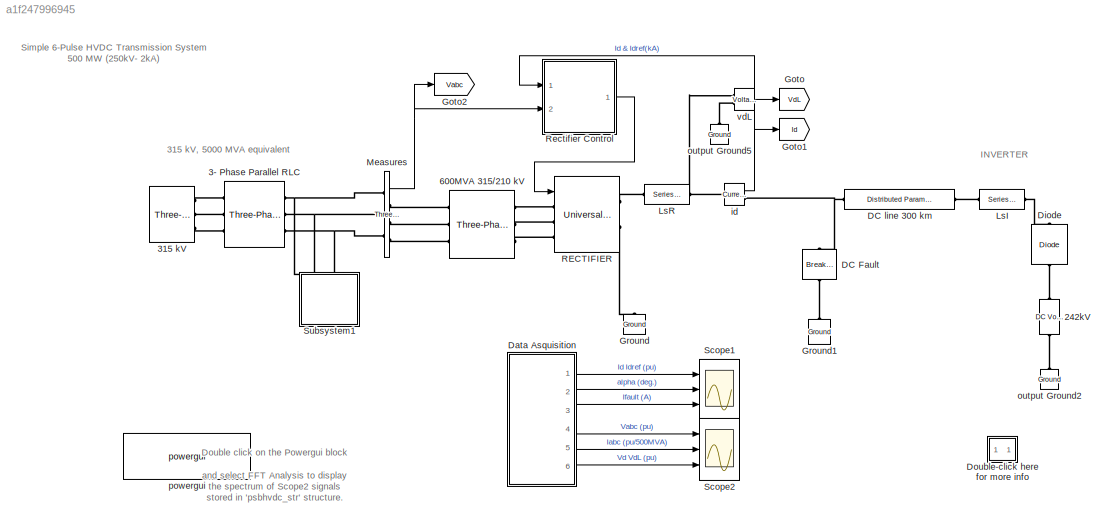
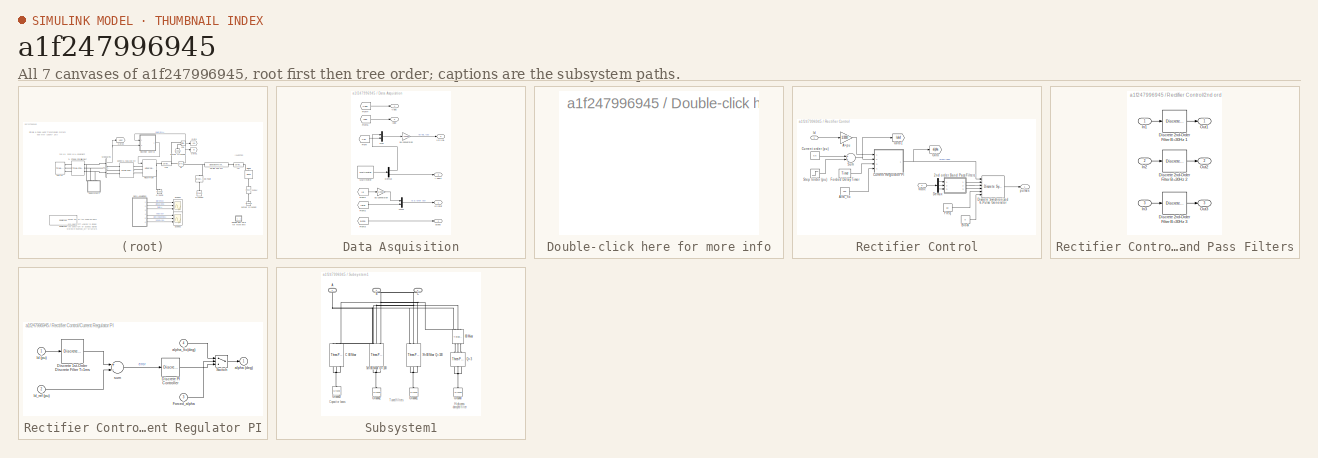
[diagram: thumbnail index - all 7 canvases of the model, root first then tree order]
MODEL slx_a1f247996945
KIND model
BLOCK [Reference] 242kV  REF=powerlib/Electrical
Sources/DC Voltage Source
  Amplitude = 242000
  AttributesFormatString = \n
  Description = source block
  Measurements = None
  Ports = [0, 0, 0, 0, 0, 1, 1]
  SourceBlock = powerlib/Electrical\nSources/DC Voltage Source
  SourceType = DC Voltage Source
BLOCK [Reference] 3- Phase Parallel RLC  REF=powerlib/Elements/Three-Phase
Parallel RLC Branch
  AttributesFormatString = \n
  BranchType = RL
  Capacitance = 1.0
  Inductance = 23.264e-3
  LConnTagsString = A|B|C
  Measurements = None
  Ports = [0, 0, 0, 0, 0, 3, 3]
  RConnTagsString = A|B|C
  Resistance = 12.41
  SourceBlock = powerlib/Elements/Three-Phase\nParallel RLC Branch
  SourceType = Three-Phase Parallel RLC Branch
BLOCK [Reference] 315 kV  REF=powerlib/Electrical
Sources/Three-Phase Source
  BaseVoltage = 0
  BusType = swing
  Frequency = 60
  Inductance = 46.671e-3
  InternalConnection = Yg
  PhaseAngle = 0
  Ports = [0, 0, 0, 0, 0, 0, 3]
  Pref = 0
  Qmax = inf
  Qmin = -inf
  Qref = 0
  Resistance = 0
  ShortCircuitLevel = 0
  SourceBlock = powerlib/Electrical\nSources/Three-Phase Source
  SourceType = Three-Phase Source
  SpecifyImpedance = off
  Voltage = 315e3
  XRratio = 0
BLOCK [Reference] 600MVA 315//210 kV  REF=powerlib/Elements/Three-Phase
Transformer
(Two Windings)
  AttributesFormatString = \n
  BreakLoop = off
  DataFile = 'hysteresis'
  DataType = off
  Hysteresis = off
  InitialFluxes = [ 0.8 , -0.8 , 0.7 ]
  Lm = 500
  Measurements = None
  MoreParameters = off
  NominalPower = [ 600e6 60 ]
  Ports = [0, 0, 0, 0, 0, 3, 3]
  Rm = 500
  Saturation = [ 0,0  ;  0.005,1.2  ;  1.0,1.4 ]
  SetInitialFlux = off
  SetSaturation = off
  SourceBlock = powerlib/Elements/Three-Phase\nTransformer\n(Two Windings)
  SourceType = Three-Phase Transformer (Two Windings)
  TransfoNumber = 0
  UNITS = pu
  Winding1 = [ 315e3*0.97 0.0015  0.0 ]
  Winding1Connection = Yg
  Winding2 = [ 210e3 0.0015 0.12]
  Winding2Connection = Delta (D1)
BLOCK [Reference] DC Fault  REF=powerlib/Elements/Breaker
  AttributesFormatString = \n
  BreakerResistance = 0.1
  External = off
  InitialState = 0
  Measurements = Branch current
  MoreParameters = off
  NoBreakLoop = off
  Ports = [0, 0, 0, 0, 0, 1, 1]
  SnubberCapacitance = 0
  SnubberResistance = inf
  SourceBlock = powerlib/Elements/Breaker
  SourceType = Breaker
  SwitchingTimes = [ 0.5 0.51 ]
BLOCK [Reference] DC line 300 km  REF=powerlib/Elements/Distributed Parameters Line
  AttributesFormatString = \n
  Capacitance = 14.4e-9
  Frequency = 60
  Inductance = 0.792e-3
  Length = 300
  Measurements = None
  Phases = 1
  Ports = [0, 0, 0, 0, 0, 1, 1]
  Resistance = 0.015
  SourceBlock = powerlib/Elements/Distributed Parameters Line
  SourceType = Distributed Parameters Line
  x1 = [-0.00104166666666667 96799.9999940249;-0.000998263888888889 96799.9999940249;-0.000954861111111111 96799.9999940249;-0.000911458333333333 96799.9999940249;-0.000868055555555556 96799.9999940249;-0.000824652777777778 96799.9999940249;-0.00078125 96799.9999940249;-0.000737847222222222 96799.9999940249;-0.000694444444444444 96799.9999940249;-0.000651041666666667 96799.9999940249;-0.00060763888888888...<+517ch>
  x2 = [-0.00104166666666667 96799.9999940249;-0.000998263888888889 96799.9999940249;-0.000954861111111111 96799.9999940249;-0.000911458333333333 96799.9999940249;-0.000868055555555556 96799.9999940249;-0.000824652777777778 96799.9999940249;-0.00078125 96799.9999940249;-0.000737847222222222 96799.9999940249;-0.000694444444444444 96799.9999940249;-0.000651041666666667 96799.9999940249;-0.00060763888888888...<+517ch>
  x3 = [-0.00104166666666667 406.863760317022;-0.000998263888888889 406.863760317022;-0.000954861111111111 406.863760317022;-0.000911458333333333 406.863760317022;-0.000868055555555556 406.863760317022;-0.000824652777777778 406.863760317022;-0.00078125 406.863760317022;-0.000737847222222222 406.863760317022;-0.000694444444444444 406.863760317022;-0.000651041666666667 406.863760317022;-0.00060763888888888...<+517ch>
  x4 = [-0.00104166666666667 406.863760317022;-0.000998263888888889 406.863760317022;-0.000954861111111111 406.863760317022;-0.000911458333333333 406.863760317022;-0.000868055555555556 406.863760317022;-0.000824652777777778 406.863760317022;-0.00078125 406.863760317022;-0.000737847222222222 406.863760317022;-0.000694444444444444 406.863760317022;-0.000651041666666667 406.863760317022;-0.00060763888888888...<+517ch>
  x5 = 0.00101312980412186
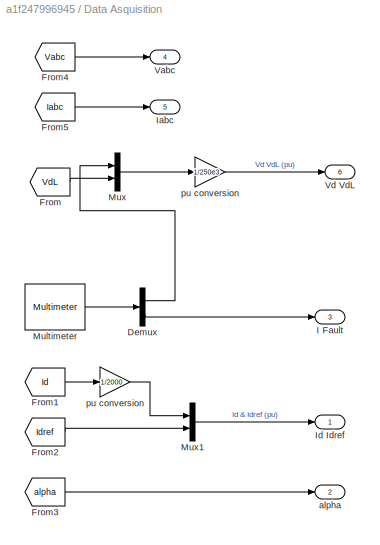
BLOCK [SubSystem] Data Asquisition
  FunctionWithSeparateData = off
  MaskHideContents = off
  MinAlgLoopOccurrences = off
  Opaque = off
  Ports = [0, 6]
  PropExecContextOutsideSubsystem = off
  RTWSystemCode = Auto
  RequestExecContextInheritance = off
BLOCK [Demux] Data Asquisition/Demux
  Outputs = 2
  Ports = [1, 2]
BLOCK [From] Data Asquisition/From
  CloseFcn = tagdialog Close
  GotoTag = VdL
  TagVisibility = global
BLOCK [From] Data Asquisition/From1
  CloseFcn = tagdialog Close
  GotoTag = Id
  TagVisibility = global
BLOCK [From] Data Asquisition/From2
  CloseFcn = tagdialog Close
  GotoTag = Idref
  TagVisibility = global
BLOCK [From] Data Asquisition/From3
  CloseFcn = tagdialog Close
  GotoTag = alpha
  TagVisibility = global
BLOCK [From] Data Asquisition/From4
  CloseFcn = tagdialog Close
  GotoTag = Vabc
  TagVisibility = global
BLOCK [From] Data Asquisition/From5
  CloseFcn = tagdialog Close
  GotoTag = Iabc
  TagVisibility = global
BLOCK [Outport] Data Asquisition/I Fault
  IconDisplay = Port number
  Port = 3
BLOCK [Outport] Data Asquisition/Iabc
  IconDisplay = Port number
  Port = 5
BLOCK [Outport] Data Asquisition/Id Idref 
  IconDisplay = Port number
BLOCK [Reference] Data Asquisition/Multimeter  REF=powerlib/Measurements/Multimeter
  AttributesFormatString = \n
  AxesSetting = [0,0.1,-100,100]
  Display = 0
  Gain = [1 1]
  L = 5
  OutputType = Magnitude
  PSBOutputType = 1
  PSBequivalent = 0
  PhasorSimulation = off
  Ports = [0, 1, 0, 0, 0, 1]
  SavedBlockNames = {}
  SourceBlock = powerlib/Measurements/Multimeter
  SourceType = MultimeterPSB
  Tag = PoWeRsYsTeMmEaSuReMeNt
  sel = [4 5]
  yselected = {'Udc: RECTIFIER','Ib: DC Fault'};
BLOCK [Mux] Data Asquisition/Mux
  DisplayOption = bar
  Inputs = 2
  Ports = [2, 1]
BLOCK [Mux] Data Asquisition/Mux1
  DisplayOption = bar
  Inputs = 2
  Ports = [2, 1]
BLOCK [Outport] Data Asquisition/Vabc
  IconDisplay = Port number
  Port = 4
BLOCK [Outport] Data Asquisition/Vd VdL
  IconDisplay = Port number
  Port = 6
BLOCK [Outport] Data Asquisition/alpha
  IconDisplay = Port number
  Port = 2
BLOCK [Gain] Data Asquisition/pu conversion
  Gain = 1/2000
BLOCK [Gain] Data Asquisition/pu conversion 
  Gain = 1/250e3
BLOCK [Reference] Diode  REF=powerlib/Power
Electronics/Diode
  AttributesFormatString = \n
  Cs = 0.05e-6
  IC = 0
  Lon = 0
  Measurements = off
  Ports = [0, 0, 0, 0, 0, 1, 1]
  Ron = 0.01
  Rs = 1000
  SourceBlock = powerlib/Power\nElectronics/Diode
  SourceType = Diode
  UseSnubber = off
  Vf = 0.8
BLOCK [SubSystem] Double-click here for more info
  FunctionWithSeparateData = off
  MaskHideContents = off
  MinAlgLoopOccurrences = off
  Opaque = off
  OpenFcn = showdemo(bdroot(gcb))
  Ports = []
  PropExecContextOutsideSubsystem = off
  RTWSystemCode = Auto
  RequestExecContextInheritance = off
BLOCK [Goto] Goto
  GotoTag = VdL
  TagVisibility = global
BLOCK [Goto] Goto1
  GotoTag = Id
  TagVisibility = global
BLOCK [Goto] Goto2
  GotoTag = Vabc
  TagVisibility = global
BLOCK [Reference] Ground  REF=powerlib/Elements/Ground
  AttributesFormatString = \n
  LConnTagsString = a
  Ports = [0, 0, 0, 0, 0, 1]
  SourceBlock = powerlib/Elements/Ground
  SourceType = Ground
BLOCK [Reference] Ground1  REF=powerlib/Elements/Ground
  AttributesFormatString = \n
  LConnTagsString = a
  Ports = [0, 0, 0, 0, 0, 1]
  SourceBlock = powerlib/Elements/Ground
  SourceType = Ground
BLOCK [Reference] LsI  REF=powerlib/Elements/Series RLC Branch
  AttributesFormatString = \n
  BranchType = RL
  Capacitance = 1.0
  Inductance = .5
  InitialCurrent = 0
  InitialVoltage = 0
  LConnTagsString = __new0
  Measurements = None
  Ports = [0, 0, 0, 0, 0, 1, 1]
  RConnTagsString = __new0
  Resistance = .5
  SetiL0 = off
  Setx0 = off
  SourceBlock = powerlib/Elements/Series RLC Branch
  SourceType = Series RLC Branch
BLOCK [Reference] LsR   REF=powerlib/Elements/Series RLC Branch
  AttributesFormatString = \n
  BranchType = RL
  Capacitance = 1.0
  Inductance = .5
  InitialCurrent = 0
  InitialVoltage = 0
  LConnTagsString = __new0
  Measurements = None
  Ports = [0, 0, 0, 0, 0, 1, 1]
  RConnTagsString = __new0
  Resistance = .5
  SetiL0 = off
  Setx0 = off
  SourceBlock = powerlib/Elements/Series RLC Branch
  SourceType = Series RLC Branch
BLOCK [Reference] Measures  REF=powerlib/Measurements/Three-Phase
V-I Measurement
  CurrentMeasurement = yes
  Ipu = on
  LabelI = Iabc
  LabelV = V1
  OutputType = Magnitude
  PSBequivalent = 0
  Pbase = 500e6
  PhasorSimulation = off
  Ports = [0, 1, 0, 0, 0, 3, 3]
  SetLabelI = on
  SetLabelV = off
  SourceBlock = powerlib/Measurements/Three-Phase\nV-I Measurement
  SourceType = Three-Phase VI Measurement
  Vbase = 315e3
  VoltageMeasurement = phase-to-ground
  Vpu = on
  VpuLL = off
BLOCK [Reference] RECTIFIER  REF=powerlib/Power
Electronics/Universal Bridge
  Arms = 3
  AttributesFormatString = \n
  Device = Thyristors
  ForwardVoltage = 0
  ForwardVoltages = [  0.8  0.8  ]
  GTOparameters = [ 10e-6 , 20e-6 ]
  IGBTparameters = [ 1e-6 , 2e-6 ]
  Lon = 0
  Measurements = UAB UBC UCA UDC voltages
  Measurements_2 = None
  Ports = [1, 0, 0, 0, 0, 3, 2]
  Ron = 1e-3
  SnubberCapacitance = 50e-9
  SnubberResistance = 2000
  SourceBlock = powerlib/Power\nElectronics/Universal Bridge
  SourceType = Universal Bridge
  converterType = Rectifier
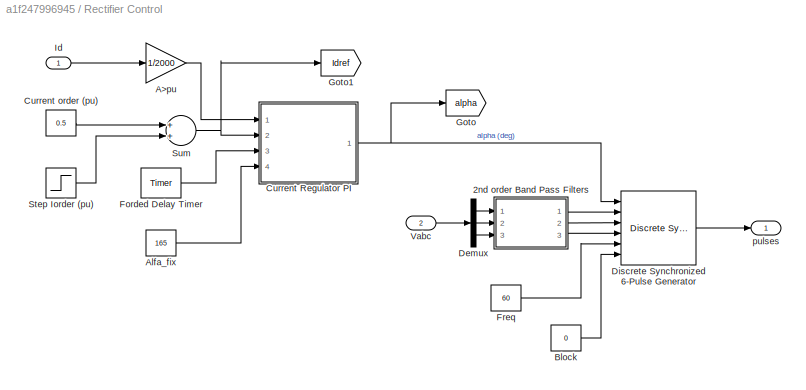
BLOCK [SubSystem] Rectifier Control
  FunctionWithSeparateData = off
  MaskHideContents = off
  MinAlgLoopOccurrences = off
  Opaque = off
  Ports = [2, 1]
  PropExecContextOutsideSubsystem = off
  RTWSystemCode = Auto
  RequestExecContextInheritance = off
BLOCK [SubSystem] Rectifier Control/2nd order Band Pass Filters
  FunctionWithSeparateData = off
  MaskHideContents = off
  MinAlgLoopOccurrences = off
  Opaque = off
  Ports = [3, 3]
  PropExecContextOutsideSubsystem = off
  RTWSystemCode = Auto
  RequestExecContextInheritance = off
BLOCK [Reference] Rectifier Control/2nd order Band Pass Filters/Discrete 2nd-Order Filter B=30Hz 1  REF=powerlib_extras/Discrete 
Control Blocks/Discrete 
2nd-Order
Filter
  FilterType = Bandpass
  Fo = 60
  Initialize = on
  PlotResponse = off
  Ports = [1, 1]
  SourceBlock = powerlib_extras/Discrete \nControl Blocks/Discrete \n2nd-Order\nFilter
  SourceType = Discrete 2nd-Order Filter
  Ts = 1/360/64
  Vac_Init = [0.8 -25 60]
  Vdc_Init = -0.4
  Zeta = 0.25
  param1 = [1 500 0.1]
BLOCK [Reference] Rectifier Control/2nd order Band Pass Filters/Discrete 2nd-Order Filter B=30Hz 2  REF=powerlib_extras/Discrete 
Control Blocks/Discrete 
2nd-Order
Filter
  FilterType = Bandpass
  Fo = 60
  Initialize = on
  PlotResponse = off
  Ports = [1, 1]
  SourceBlock = powerlib_extras/Discrete \nControl Blocks/Discrete \n2nd-Order\nFilter
  SourceType = Discrete 2nd-Order Filter
  Ts = 1/360/64
  Vac_Init = [0.8 -25 60]
  Vdc_Init = -0.4
  Zeta = 0.25
  param1 = [1 500 0.1]
BLOCK [Reference] Rectifier Control/2nd order Band Pass Filters/Discrete 2nd-Order Filter B=30Hz 3  REF=powerlib_extras/Discrete 
Control Blocks/Discrete 
2nd-Order
Filter
  FilterType = Bandpass
  Fo = 60
  Initialize = on
  PlotResponse = off
  Ports = [1, 1]
  SourceBlock = powerlib_extras/Discrete \nControl Blocks/Discrete \n2nd-Order\nFilter
  SourceType = Discrete 2nd-Order Filter
  Ts = 1/360/64
  Vac_Init = [0.8 -25 60]
  Vdc_Init = -0.4
  Zeta = 0.25
  param1 = [1 500 0.1]
BLOCK [Inport] Rectifier Control/2nd order Band Pass Filters/In1
  IconDisplay = Port number
BLOCK [Inport] Rectifier Control/2nd order Band Pass Filters/In2
  IconDisplay = Port number
  Port = 2
BLOCK [Inport] Rectifier Control/2nd order Band Pass Filters/In3
  IconDisplay = Port number
  Port = 3
BLOCK [Outport] Rectifier Control/2nd order Band Pass Filters/Out1
  IconDisplay = Port number
BLOCK [Outport] Rectifier Control/2nd order Band Pass Filters/Out2
  IconDisplay = Port number
  Port = 2
BLOCK [Outport] Rectifier Control/2nd order Band Pass Filters/Out3
  IconDisplay = Port number
  Port = 3
BLOCK [Gain] Rectifier Control/A>pu
  Gain = 1/2000
BLOCK [Constant] Rectifier Control/Alfa_fix
  Value = 165
BLOCK [Constant] Rectifier Control/Block
  Value = 0
BLOCK [SubSystem] Rectifier Control/Current Regulator PI
  FunctionWithSeparateData = off
  MaskHideContents = off
  MinAlgLoopOccurrences = off
  Opaque = off
  Ports = [4, 1]
  PropExecContextOutsideSubsystem = off
  RTWSystemCode = Auto
  RequestExecContextInheritance = off
BLOCK [Reference] Rectifier Control/Current Regulator PI/Discrete 1st-Order Discrete Filter T=1ms  REF=powerlib_extras/Discrete 
Control Blocks/Discrete
1st-Order
Filter
  FilterType = Lowpass
  Initialize = off
  PlotResponse = off
  Ports = [1, 1]
  SourceBlock = powerlib_extras/Discrete \nControl Blocks/Discrete\n1st-Order\nFilter
  SourceType = Discrete 1st-Order Filter
  Tc = 1e-3
  Ts = 1/360/64
  Vac_Init = [0.8 -25 60]
  Vdc_Init = -0.4
  param1 = [1 500 0.1]
BLOCK [Reference] Rectifier Control/Current Regulator PI/Discrete PI Controller  REF=powerlib_extras/Discrete 
Control Blocks/Discrete
PI Controller
  Init = 90
  Ki = 5000
  Kp = 65
  Par_Limits = [165 5]
  Ports = [1, 1]
  SourceBlock = powerlib_extras/Discrete \nControl Blocks/Discrete\nPI Controller
  SourceType = Discrete PI Controller
  Ts = 1/360/64
BLOCK [Inport] Rectifier Control/Current Regulator PI/Forced_alpha
  IconDisplay = Port number
  Port = 3
BLOCK [Inport] Rectifier Control/Current Regulator PI/Id (pu)
  IconDisplay = Port number
BLOCK [Inport] Rectifier Control/Current Regulator PI/Id_ref (pu)
  IconDisplay = Port number
  Port = 2
BLOCK [Switch] Rectifier Control/Current Regulator PI/Switch
  SaturateOnIntegerOverflow = off
  Threshold = 0.5
  ZeroCross = off
BLOCK [Outport] Rectifier Control/Current Regulator PI/alpha (deg)
  IconDisplay = Port number
  InitialOutput = 0
BLOCK [Inport] Rectifier Control/Current Regulator PI/alpha_fix(deg)
  IconDisplay = Port number
  Port = 4
BLOCK [Sum] Rectifier Control/Current Regulator PI/sum
  Inputs = +-
  Ports = [2, 1]
BLOCK [Constant] Rectifier Control/Current order (pu)
  Value = 0.5
BLOCK [Demux] Rectifier Control/Demux
  Outputs = 3
  Ports = [1, 3]
BLOCK [Reference] Rectifier Control/Discrete Synchronized 6-Pulse Generator  REF=powerlib_extras/Discrete 
Control Blocks/Discrete Synchronized
6-Pulse Generator
  Double_Pulse = off
  Ports = [6, 1]
  SourceBlock = powerlib_extras/Discrete \nControl Blocks/Discrete Synchronized\n6-Pulse Generator
  SourceType = Discrete Synchronized 6-pulse generator
  Ts = 1/360/64
  pwidth = 70
BLOCK [Reference] Rectifier Control/Forded Delay Timer  REF=powerlib_extras/Control 
Blocks/Timer
  Ports = [0, 1]
  SourceBlock = powerlib_extras/Control \nBlocks/Timer
  SourceType = Timer
  e = [1 0  ]
  t = [ 0.55 0.57]
BLOCK [Constant] Rectifier Control/Freq
  Value = 60
BLOCK [Goto] Rectifier Control/Goto
  GotoTag = alpha
  TagVisibility = global
BLOCK [Goto] Rectifier Control/Goto1
  GotoTag = Idref
  TagVisibility = global
BLOCK [Inport] Rectifier Control/Id
  IconDisplay = Port number
BLOCK [Step] Rectifier Control/Step Iorder (pu)  
  After = 0.6
  SampleTime = 0
  Time = 0.3
  ZeroCross = off
BLOCK [Sum] Rectifier Control/Sum
  Ports = [2, 1]
BLOCK [Inport] Rectifier Control/Vabc
  IconDisplay = Port number
  Port = 2
BLOCK [Outport] Rectifier Control/pulses
  IconDisplay = Port number
BLOCK [Scope] Scope1
  Floating = off
  LimitDataPoints = off
  NumInputPorts = 3
  Ports = [3]
  SampleTime = 0
  ShowLegends = off
  TimeRange = 0.8
  YMax = 2~170~6000
  YMin = -0.25~0~-500
  ZoomMode = yonly
BLOCK [Scope] Scope2
  DataFormat = StructureWithTime
  Floating = off
  LimitDataPoints = off
  NumInputPorts = 3
  Ports = [3]
  SampleTime = 0
  SaveName = psbhvdc_str
  SaveToWorkspace = on
  ShowLegends = off
  TimeRange = 0.8
  YMax = 1.5~3~2
  YMin = -1.5~-3~-1.5
BLOCK [SubSystem] Subsystem1
  FunctionWithSeparateData = off
  MaskHideContents = off
  MinAlgLoopOccurrences = off
  Opaque = off
  Ports = [0, 0, 0, 0, 0, 3]
  PropExecContextOutsideSubsystem = off
  RTWSystemCode = Auto
  RequestExecContextInheritance = off
BLOCK [Reference] Subsystem1/5th 80 Mvar Q=100   REF=powerlib/Elements/Three-Phase
Series RLC Branch
  AttributesFormatString = \n
  BranchType = RLC
  Capacitance = 2.14e-6
  Inductance = 131.5e-3
  LConnTagsString = A|B|C
  Measurements = None
  Ports = [0, 0, 0, 0, 0, 3, 3]
  RConnTagsString = A|B|C
  Resistance = 2.48
  SourceBlock = powerlib/Elements/Three-Phase\nSeries RLC Branch
  SourceType = Three-Phase Series RLC Branch
BLOCK [Reference] Subsystem1/7th 80 Mvar Q=100  REF=powerlib/Elements/Three-Phase
Series RLC Branch
  AttributesFormatString = \n
  BranchType = RLC
  Capacitance = 2.14e-6
  Inductance = 67.1e-3
  LConnTagsString = A|B|C
  Measurements = None
  Ports = [0, 0, 0, 0, 0, 3, 3]
  RConnTagsString = A|B|C
  Resistance = 1.77
  SourceBlock = powerlib/Elements/Three-Phase\nSeries RLC Branch
  SourceType = Three-Phase Series RLC Branch
BLOCK [Reference] Subsystem1/80 Mvar  REF=powerlib/Elements/Three-Phase
Series RLC Branch
  AttributesFormatString = \n
  BranchType = C
  Capacitance = 2.14e-6
  Inductance = 1.0
  LConnTagsString = A|B|C
  Measurements = None
  Ports = [0, 0, 0, 0, 0, 3, 3]
  RConnTagsString = A|B|C
  Resistance = 1.0
  SourceBlock = powerlib/Elements/Three-Phase\nSeries RLC Branch
  SourceType = Three-Phase Series RLC Branch
BLOCK [PMIOPort] Subsystem1/A
  Port = 1
  Side = Left
BLOCK [PMIOPort] Subsystem1/B
  Port = 2
  Side = Left
BLOCK [PMIOPort] Subsystem1/C
  Port = 3
  Side = Left
BLOCK [Reference] Subsystem1/C 80 Mvar  REF=powerlib/Elements/Three-Phase
Series RLC Branch
  AttributesFormatString = \n
  BranchType = C
  Capacitance = 2.14e-6
  Inductance = 1.0
  LConnTagsString = A|B|C
  Measurements = None
  Ports = [0, 0, 0, 0, 0, 3, 3]
  RConnTagsString = A|B|C
  Resistance = 1.0
  SourceBlock = powerlib/Elements/Three-Phase\nSeries RLC Branch
  SourceType = Three-Phase Series RLC Branch
BLOCK [Reference] Subsystem1/Ground  REF=powerlib/Elements/Ground
  AttributesFormatString = \n
  LConnTagsString = a
  Ports = [0, 0, 0, 0, 0, 1]
  SourceBlock = powerlib/Elements/Ground
  SourceType = Ground
BLOCK [Reference] Subsystem1/Ground1  REF=powerlib/Elements/Ground
  AttributesFormatString = \n
  LConnTagsString = a
  Ports = [0, 0, 0, 0, 0, 1]
  SourceBlock = powerlib/Elements/Ground
  SourceType = Ground
BLOCK [Reference] Subsystem1/Ground2  REF=powerlib/Elements/Ground
  AttributesFormatString = \n
  LConnTagsString = a
  Ports = [0, 0, 0, 0, 0, 1]
  SourceBlock = powerlib/Elements/Ground
  SourceType = Ground
BLOCK [Reference] Subsystem1/Ground3  REF=powerlib/Elements/Ground
  AttributesFormatString = \n
  LConnTagsString = a
  Ports = [0, 0, 0, 0, 0, 1]
  SourceBlock = powerlib/Elements/Ground
  SourceType = Ground
BLOCK [Reference] Subsystem1/Q=3  REF=powerlib/Elements/Three-Phase
Parallel RLC Branch
  AttributesFormatString = \n
  BranchType = RL
  Capacitance = 1.0
  Inductance = 27.2e-3
  LConnTagsString = A|B|C
  Measurements = None
  Ports = [0, 0, 0, 0, 0, 3, 3]
  RConnTagsString = A|B|C
  Resistance = 225.6
  SourceBlock = powerlib/Elements/Three-Phase\nParallel RLC Branch
  SourceType = Three-Phase Parallel RLC Branch
BLOCK [Reference] id  REF=powerlib/Measurements/Current Measurement
  AttributesFormatString = \n
  OutputType = Complex
  PSBequivalent = 0
  PhasorSimulation = off
  Ports = [0, 1, 0, 0, 0, 1, 1]
  SourceBlock = powerlib/Measurements/Current Measurement
  SourceType = Current Measurement
  Tag = PoWeRsYsTeMmEaSuReMeNt
BLOCK [Reference] output Ground2  REF=powerlib/Elements/Ground
  AttributesFormatString = \n
  LConnTagsString = a
  Ports = [0, 0, 0, 0, 0, 1]
  SourceBlock = powerlib/Elements/Ground
  SourceType = Ground
BLOCK [Reference] output Ground5  REF=powerlib/Elements/Ground
  AttributesFormatString = \n
  LConnTagsString = a
  Ports = [0, 0, 0, 0, 0, 1]
  SourceBlock = powerlib/Elements/Ground
  SourceType = Ground
BLOCK [Reference] powergui  REF=powerlib/powergui
  DisableRonSwitches = off
  DisableSnubberDevices = off
  DisableVfSwitches = off
  DisplayEquations = off
  DisplayStyle = 2
  EnableUseOfTLC = off
  ErrMax = 1e-4
  Frange = [0:2:500]
  FreqAxis = on
  FunctionMessages = off
  HookPort = off
  Interpol = off
  Iterations = 50
  MaxFrequency = 4000
  Pbase = 100e6
  Ports = []
  Priority = 2
  ResistiveCurrentMeasurement = off
  RestoreLinks = warning
  RmsSteady = 1
  SPID = off
  SampleTime = 1/360/64
  ShowGrid = off
  SolverType = Tustin
  SourceBlock = powerlib/powergui
  SourceType = PSB option menu block
  StartTime = 0.2
  SwTol = 0
  Ts = 0
  UnitsV = kV
  UnitsW = MW
  UserDataPersistent = on
  Xlog = off
  Ylog = off
  ZoomFFT = on
  cycles = 2
  display = off
  echomessages = off
  frequency = 60
  frequencyindice = 60
  frequencyindicesteady = 1
  fundamental = 60
  methode = off
  save = off
  structure = psbhvdc_str
  variable = ZData
  x0status = blocks
BLOCK [Reference] vdL  REF=powerlib/Measurements/Voltage Measurement
  AttributesFormatString = \n
  OutputType = Complex
  PSBequivalent = 0
  PhasorSimulation = off
  Ports = [0, 1, 0, 0, 0, 2]
  SourceBlock = powerlib/Measurements/Voltage Measurement
  SourceType = Voltage Measurement
  Tag = PoWeRsYsTeMmEaSuReMeNt
ANNOTATION (root): 315 kV, 5000 MVA equivalent
ANNOTATION (root): Double click on the Powergui block and select FFT Analysis to display the spectrum of Scope2 signals stored in 'psbhvdc_str' structure.
ANNOTATION (root): INVERTER
ANNOTATION (root): Simple 6-Pulse HVDC Transmission System 500 MW (250kV- 2kA)
ANNOTATION Subsystem1: Capacitor bancs
ANNOTATION Subsystem1: High-pass damped filter
ANNOTATION Subsystem1: Tuned filters
LINE Data Asquisition/Demux:1 -> Data Asquisition/Mux:1
LINE Data Asquisition/Demux:2 -> Data Asquisition/I Fault:1
LINE Data Asquisition/From1:1 -> Data Asquisition/pu conversion:1
LINE Data Asquisition/From2:1 -> Data Asquisition/Mux1:2
LINE Data Asquisition/From3:1 -> Data Asquisition/alpha:1
LINE Data Asquisition/From4:1 -> Data Asquisition/Vabc:1
LINE Data Asquisition/From5:1 -> Data Asquisition/Iabc:1
LINE Data Asquisition/From:1 -> Data Asquisition/Mux:2
LINE Data Asquisition/Multimeter:1 -> Data Asquisition/Demux:1
LINE Data Asquisition/Mux1:1 -> Data Asquisition/Id Idref :1
LINE Data Asquisition/Mux:1 -> Data Asquisition/pu conversion :1
LINE Data Asquisition/pu conversion :1 -> Data Asquisition/Vd VdL:1
LINE Data Asquisition/pu conversion:1 -> Data Asquisition/Mux1:1
LINE Data Asquisition:1 -> Scope1:1
LINE Data Asquisition:2 -> Scope1:2
LINE Data Asquisition:3 -> Scope1:3
LINE Data Asquisition:4 -> Scope2:1
LINE Data Asquisition:5 -> Scope2:2
LINE Data Asquisition:6 -> Scope2:3
NET Measures:1 -> Goto2:1, Rectifier Control:2
LINE Rectifier Control/2nd order Band Pass Filters/Discrete 2nd-Order Filter B=30Hz 1:1 -> Rectifier Control/2nd order Band Pass Filters/Out1:1
LINE Rectifier Control/2nd order Band Pass Filters/Discrete 2nd-Order Filter B=30Hz 2:1 -> Rectifier Control/2nd order Band Pass Filters/Out2:1
LINE Rectifier Control/2nd order Band Pass Filters/Discrete 2nd-Order Filter B=30Hz 3:1 -> Rectifier Control/2nd order Band Pass Filters/Out3:1
LINE Rectifier Control/2nd order Band Pass Filters/In1:1 -> Rectifier Control/2nd order Band Pass Filters/Discrete 2nd-Order Filter B=30Hz 1:1
LINE Rectifier Control/2nd order Band Pass Filters/In2:1 -> Rectifier Control/2nd order Band Pass Filters/Discrete 2nd-Order Filter B=30Hz 2:1
LINE Rectifier Control/2nd order Band Pass Filters/In3:1 -> Rectifier Control/2nd order Band Pass Filters/Discrete 2nd-Order Filter B=30Hz 3:1
LINE Rectifier Control/2nd order Band Pass Filters:1 -> Rectifier Control/Discrete Synchronized 6-Pulse Generator:2
LINE Rectifier Control/2nd order Band Pass Filters:2 -> Rectifier Control/Discrete Synchronized 6-Pulse Generator:3
LINE Rectifier Control/2nd order Band Pass Filters:3 -> Rectifier Control/Discrete Synchronized 6-Pulse Generator:4
LINE Rectifier Control/A>pu:1 -> Rectifier Control/Current Regulator PI:1
LINE Rectifier Control/Alfa_fix:1 -> Rectifier Control/Current Regulator PI:4
LINE Rectifier Control/Block:1 -> Rectifier Control/Discrete Synchronized 6-Pulse Generator:6
LINE Rectifier Control/Current Regulator PI/Discrete 1st-Order Discrete Filter T=1ms:1 -> Rectifier Control/Current Regulator PI/sum:1
LINE Rectifier Control/Current Regulator PI/Discrete PI Controller:1 -> Rectifier Control/Current Regulator PI/Switch:3
LINE Rectifier Control/Current Regulator PI/Forced_alpha:1 -> Rectifier Control/Current Regulator PI/Switch:2
LINE Rectifier Control/Current Regulator PI/Id (pu):1 -> Rectifier Control/Current Regulator PI/Discrete 1st-Order Discrete Filter T=1ms:1
LINE Rectifier Control/Current Regulator PI/Id_ref (pu):1 -> Rectifier Control/Current Regulator PI/sum:2
LINE Rectifier Control/Current Regulator PI/Switch:1 -> Rectifier Control/Current Regulator PI/alpha (deg):1
LINE Rectifier Control/Current Regulator PI/alpha_fix(deg):1 -> Rectifier Control/Current Regulator PI/Switch:1
LINE Rectifier Control/Current Regulator PI/sum:1 -> Rectifier Control/Current Regulator PI/Discrete PI Controller:1
NET Rectifier Control/Current Regulator PI:1 -> Rectifier Control/Discrete Synchronized 6-Pulse Generator:1, Rectifier Control/Goto:1
LINE Rectifier Control/Current order (pu):1 -> Rectifier Control/Sum:1
LINE Rectifier Control/Demux:1 -> Rectifier Control/2nd order Band Pass Filters:1
LINE Rectifier Control/Demux:2 -> Rectifier Control/2nd order Band Pass Filters:2
LINE Rectifier Control/Demux:3 -> Rectifier Control/2nd order Band Pass Filters:3
LINE Rectifier Control/Discrete Synchronized 6-Pulse Generator:1 -> Rectifier Control/pulses:1
LINE Rectifier Control/Forded Delay Timer:1 -> Rectifier Control/Current Regulator PI:3
LINE Rectifier Control/Freq:1 -> Rectifier Control/Discrete Synchronized 6-Pulse Generator:5
LINE Rectifier Control/Id:1 -> Rectifier Control/A>pu:1
LINE Rectifier Control/Step Iorder (pu)  :1 -> Rectifier Control/Sum:2
NET Rectifier Control/Sum:1 -> Rectifier Control/Current Regulator PI:2, Rectifier Control/Goto1:1
LINE Rectifier Control/Vabc:1 -> Rectifier Control/Demux:1
LINE Rectifier Control:1 -> RECTIFIER:1
NET id:1 -> Goto1:1, Rectifier Control:1
LINE vdL:1 -> Goto:1
PLINE 242kV:LConn1 -- output Ground2:LConn1
PLINE 242kV:RConn1 -- Diode:RConn1
PLINE 3- Phase Parallel RLC:LConn1 -- 315 kV:RConn1
PLINE 3- Phase Parallel RLC:LConn2 -- 315 kV:RConn2
PLINE 3- Phase Parallel RLC:LConn3 -- 315 kV:RConn3
PNET net1: 3- Phase Parallel RLC:RConn1 -- Measures:LConn1 -- Subsystem1:LConn1
PNET net2: 3- Phase Parallel RLC:RConn2 -- Measures:LConn2 -- Subsystem1:LConn2
PNET net3: 3- Phase Parallel RLC:RConn3 -- Measures:LConn3 -- Subsystem1:LConn3
PLINE 600MVA 315//210 kV:LConn1 -- Measures:RConn1
PLINE 600MVA 315//210 kV:LConn2 -- Measures:RConn2
PLINE 600MVA 315//210 kV:LConn3 -- Measures:RConn3
PLINE 600MVA 315//210 kV:RConn1 -- RECTIFIER:LConn1
PLINE 600MVA 315//210 kV:RConn2 -- RECTIFIER:LConn2
PLINE 600MVA 315//210 kV:RConn3 -- RECTIFIER:LConn3
PNET net4: DC Fault:LConn1 -- DC line 300 km:LConn1 -- id:RConn1
PLINE DC Fault:RConn1 -- Ground1:LConn1
PLINE DC line 300 km:RConn1 -- LsI:LConn1
PLINE Diode:LConn1 -- LsI:RConn1
PLINE Ground:LConn1 -- RECTIFIER:RConn2
PLINE LsR :LConn1 -- RECTIFIER:RConn1
PNET net5: LsR :RConn1 -- id:LConn1 -- vdL:LConn1
PNET net6: Subsystem1/5th 80 Mvar Q=100 :LConn1 -- Subsystem1/7th 80 Mvar Q=100:LConn1 -- Subsystem1/80 Mvar:LConn1 -- Subsystem1/A:RConn1 -- Subsystem1/C 80 Mvar:LConn1
PNET net7: Subsystem1/5th 80 Mvar Q=100 :LConn2 -- Subsystem1/7th 80 Mvar Q=100:LConn2 -- Subsystem1/80 Mvar:LConn2 -- Subsystem1/B:RConn1 -- Subsystem1/C 80 Mvar:LConn2
PNET net8: Subsystem1/5th 80 Mvar Q=100 :LConn3 -- Subsystem1/7th 80 Mvar Q=100:LConn3 -- Subsystem1/80 Mvar:LConn3 -- Subsystem1/C 80 Mvar:LConn3 -- Subsystem1/C:RConn1
PNET net9: Subsystem1/5th 80 Mvar Q=100 :RConn1 -- Subsystem1/5th 80 Mvar Q=100 :RConn2 -- Subsystem1/5th 80 Mvar Q=100 :RConn3 -- Subsystem1/Ground2:LConn1
PNET net10: Subsystem1/7th 80 Mvar Q=100:RConn1 -- Subsystem1/7th 80 Mvar Q=100:RConn2 -- Subsystem1/7th 80 Mvar Q=100:RConn3 -- Subsystem1/Ground1:LConn1
PLINE Subsystem1/80 Mvar:RConn1 -- Subsystem1/Q=3:LConn1
PLINE Subsystem1/80 Mvar:RConn2 -- Subsystem1/Q=3:LConn2
PLINE Subsystem1/80 Mvar:RConn3 -- Subsystem1/Q=3:LConn3
PNET net11: Subsystem1/C 80 Mvar:RConn1 -- Subsystem1/C 80 Mvar:RConn2 -- Subsystem1/C 80 Mvar:RConn3 -- Subsystem1/Ground3:LConn1
PNET net12: Subsystem1/Ground:LConn1 -- Subsystem1/Q=3:RConn1 -- Subsystem1/Q=3:RConn2 -- Subsystem1/Q=3:RConn3
PLINE output Ground5:LConn1 -- vdL:LConn2
note: NET lines group one-source signal fan-out (src -> all destinations, sorted); 1:1 wires keep LINE; PNET lines group multi-terminal physical nets as a canonical sorted terminal list (undirected conserving connections); 2-terminal nets keep the pairwise PLINE form
